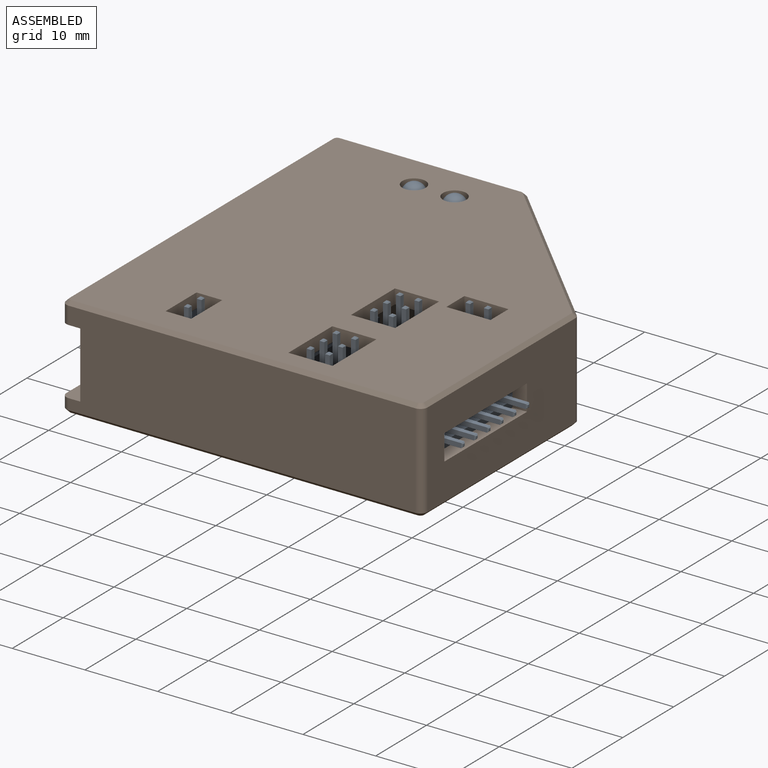
[diagram: assembled view]
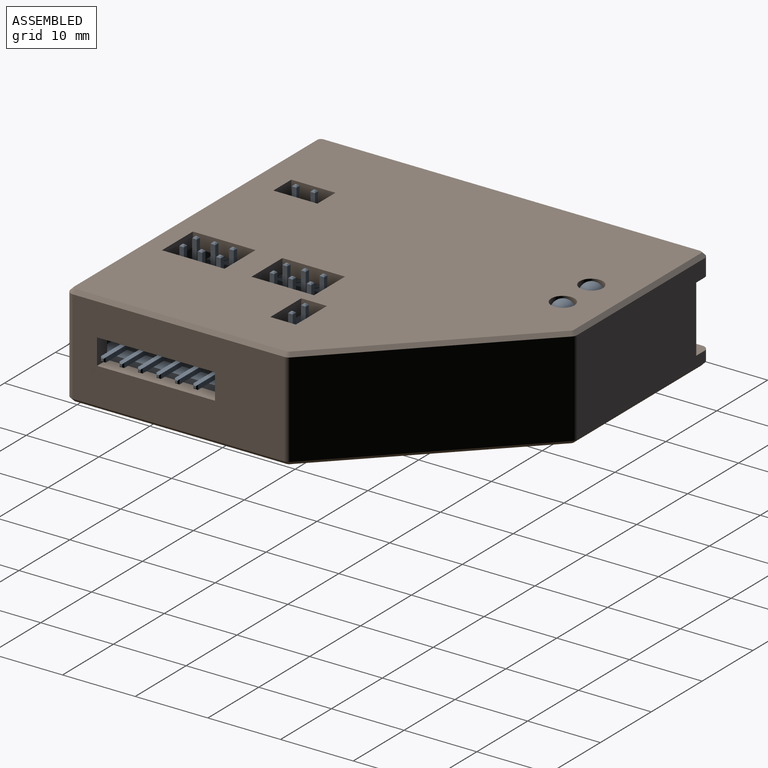
[diagram: assembled view, second angle]
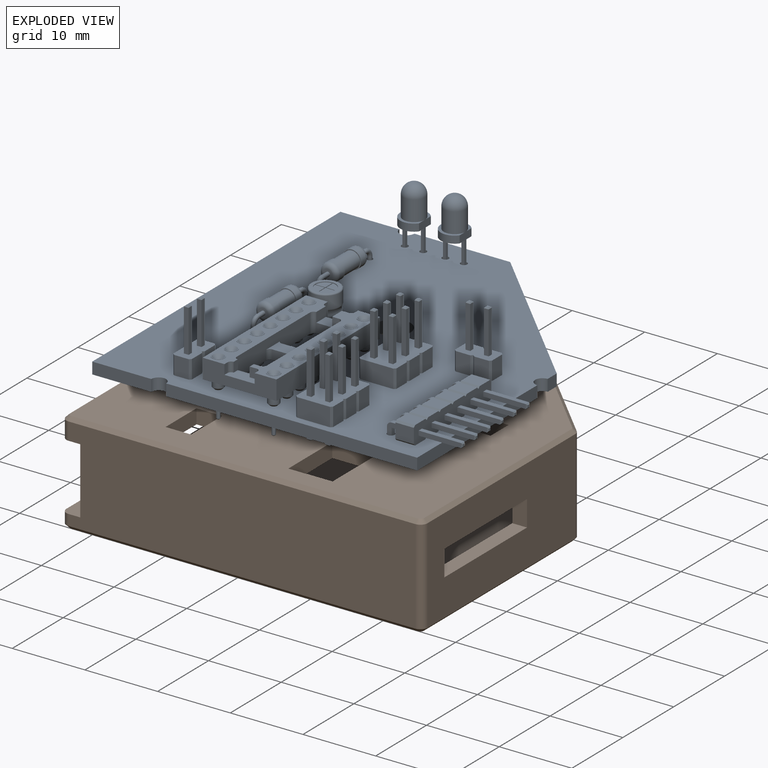
[diagram: exploded view]
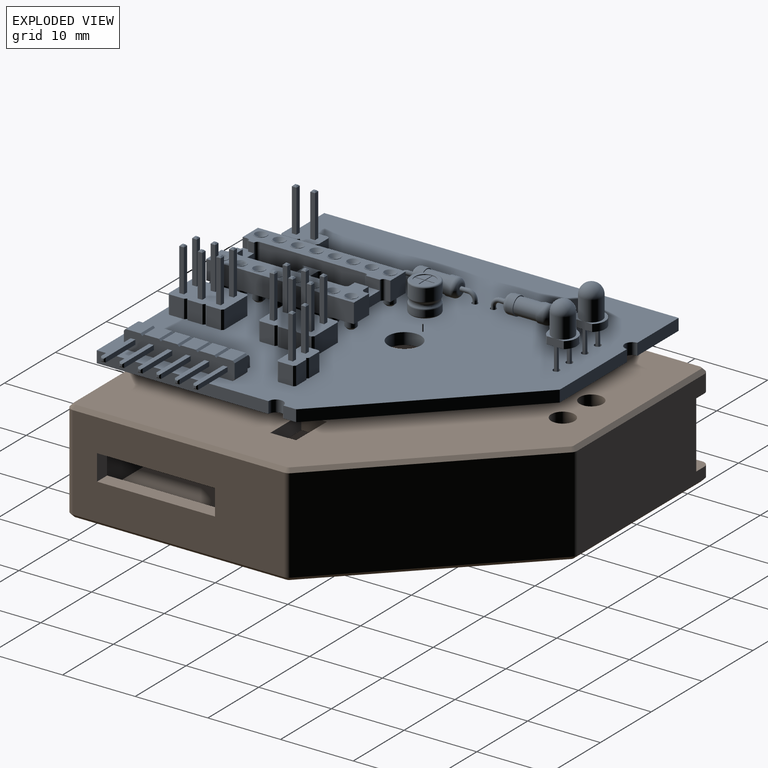
[diagram: exploded view, second angle]
FCSTD DOCUMENT  (FreeCAD 0.21R33668 +7 (Git))
Label: uprs232ttl
License: All rights reserved
LicenseURL: http://en.wikipedia.org/wiki/All_rights_reserved
objects: Sketcher::SketchObject×15, Part::Feature×14, PartDesign::Pad×12, PartDesign::Body×12, Part::Cut×10, App::Part×5, App::Link×4, PartDesign::Chamfer×2, Part::MultiFuse×2, Part::Extrusion×1, PartDesign::CoordinateSystem×1, PartDesign::Fillet×1
note: 85 computed .brp shape members not serialized (recipe doc carries the construction recipe); baked Part::Feature solids carry a one-line shape summary decoded from their .brp

FEATURE [Sketcher::SketchObject] Sketch
  FullyConstrained = true
  MapMode = 5
  Support = -> [XY_Plane005]
  sketch-geometry (11):
    g0: LineSegment StartX=-0.5 StartY=49.1 StartZ=0 EndX=-0.5 EndY=-0.5 EndZ=0
    g1: LineSegment StartX=45.204 StartY=-0.5 StartZ=0 EndX=45.204 EndY=23.638 EndZ=0
    g2: LineSegment StartX=45.204 StartY=27.678 StartZ=0 EndX=23.614 EndY=49.1 EndZ=0
    g3: LineSegment StartX=23.614 StartY=49.1 StartZ=0 EndX=10.144 EndY=49.1 EndZ=0
    g4: ArcOfCircle CenterX=9.144 CenterY=-0.5 CenterZ=0 NormalX=0 NormalY=0 NormalZ=1 AngleXU=0 Radius=1 StartAngle=0 EndAngle=3.14159
    g5: ArcOfCircle CenterX=45.204 CenterY=24.638 CenterZ=0 NormalX=0 NormalY=0 NormalZ=1 AngleXU=0 Radius=1 StartAngle=1.5708 EndAngle=4.71239
    g6: ArcOfCircle CenterX=9.144 CenterY=49.1 CenterZ=0 NormalX=0 NormalY=0 NormalZ=1 AngleXU=0 Radius=1 StartAngle=3.14159 EndAngle=6.28319
    g7: LineSegment StartX=8.144 StartY=49.1 StartZ=0 EndX=-0.5 EndY=49.1 EndZ=0
    g8: LineSegment StartX=10.144 StartY=-0.5 StartZ=0 EndX=45.204 EndY=-0.5 EndZ=0
    g9: LineSegment StartX=45.204 StartY=25.638 StartZ=0 EndX=45.204 EndY=27.678 EndZ=0
    g10: LineSegment StartX=-0.5 StartY=-0.5 StartZ=0 EndX=8.144 EndY=-0.5 EndZ=0
  constraints (36):
    c: Vertical(g0)
    c: Coincident(g8,g1)
    c: Vertical(g1)
    c: Coincident(g9,g2)
    c: Coincident(g2,g3)
    c: Coincident(g7,g0)
    c: Horizontal(g3)
    c: DistanceY(g0,g-1) = 0.5
    c: DistanceX(g0,g-1) = 0.5
    c: Distance(g0) = 49.6
    c: Radius(g4) = 1
    c: DistanceX(g-1,g4) = 9.144
    c: PointOnObject(g5,g1)
    c: Radius(g5) = 1
    c: PointOnObject(g6,g3)
    c: Equal(g4,g6)
    c: DistanceX(g-1,g6) = 9.144
    c: Coincident(g3,g6)
    c: Coincident(g7,g6)
    c: Coincident(g8,g4)
    c: Coincident(g1,g5)
    c: Coincident(g9,g5)
    c: DistanceX(g6,g2) = 14.47
    c: Coincident(g10,g0)
    c: Coincident(g10,g4)
    c: Horizontal(g10)
    c: Horizontal(g4,g1)
    c: Horizontal(g4,g4)
    c: Vertical(g2,g5)
    c: Vertical(g5,g1)
    c: DistanceX(g4,g1) = 36.06
    c: DistanceY(g1,g5) = 25.138
    c: DistanceY(g5,g2) = 3.04
    c: Perpendicular(g6,g7)
    c: Perpendicular(g0,g7)
    c: Perpendicular(g4,g10)
FEATURE [PartDesign::Pad] Pad
  Direction = (0,0,1)
  Length = 6
  Length2 = 4
  Profile = -> Sketch
  ReferenceAxis = -> Sketch [N_Axis]
  Type = 4
FEATURE [PartDesign::Body] Body  label="Case_inner"
  Group = -> [Sketch,Pad]
  Origin = -> Origin005
  Tip = -> Pad
FEATURE [Sketcher::SketchObject] Sketch001
  FullyConstrained = true
  MapMode = 5
  Support = -> [XY_Plane006]
  sketch-geometry (5):
    g0: LineSegment StartX=-2.5 StartY=51.26 StartZ=0 EndX=-2.5 EndY=-2.5 EndZ=0
    g1: LineSegment StartX=-2.5 StartY=-2.5 StartZ=0 EndX=47.2 EndY=-2.5 EndZ=0
    g2: LineSegment StartX=47.2 StartY=-2.5 StartZ=0 EndX=47.2 EndY=27.93 EndZ=0
    g3: LineSegment StartX=47.2 StartY=27.93 StartZ=0 EndX=23.87 EndY=51.26 EndZ=0
    g4: LineSegment StartX=23.87 StartY=51.26 StartZ=0 EndX=-2.5 EndY=51.26 EndZ=0
  constraints (15):
    c: Vertical(g0)
    c: Coincident(g0,g1)
    c: Horizontal(g1)
    c: Coincident(g1,g2)
    c: Vertical(g2)
    c: Coincident(g2,g3)
    c: Coincident(g3,g4)
    c: Coincident(g4,g0)
    c: DistanceX(g0,g-1) = 2.5
    c: DistanceY(g0,g-1) = 2.5
    c: DistanceX(g1,g1) = 49.7
    c: Distance(g0) = 53.76
    c: Perpendicular(g4,g0)
    c: Distance(g2) = 30.43
    c: DistanceX(g4,g4) = 26.37
FEATURE [PartDesign::Pad] Pad001
  Direction = (0,0,1)
  Length = 8
  Length2 = 6
  Profile = -> Sketch001
  ReferenceAxis = -> Sketch001 [N_Axis]
  Type = 4
FEATURE [Sketcher::SketchObject] Sketch002
  FullyConstrained = true
  MapMode = 5
  Placement = pos=(42.648,16.256,0) rot=(0.57735,0.57735,0.57735;2.0944rad)
  sketch-geometry (4):
    g0: LineSegment StartX=-14.47 StartY=3.04 StartZ=0 EndX=1.77 EndY=3.04 EndZ=0
    g1: LineSegment StartX=1.77 StartY=3.04 StartZ=0 EndX=1.77 EndY=-0.5 EndZ=0
    g2: LineSegment StartX=1.77 StartY=-0.5 StartZ=0 EndX=-14.47 EndY=-0.5 EndZ=0
    g3: LineSegment StartX=-14.47 StartY=-0.5 StartZ=0 EndX=-14.47 EndY=3.04 EndZ=0
  constraints (12):
    c: Coincident(g0,g1)
    c: Coincident(g1,g2)
    c: Coincident(g2,g3)
    c: Coincident(g3,g0)
    c: Horizontal(g0)
    c: Horizontal(g2)
    c: Vertical(g1)
    c: Vertical(g3)
    c: DistanceY(g1,g1) = 3.54
    c: DistanceX(g0,g0) = 16.24
    c: Distance(g-1,g0) = 3.04
    c: DistanceX(g-2,g0) = 1.77
FEATURE [PartDesign::Pad] Pad002
  Direction = (1,0,0)
  Length = 10
  Length2 = 10
  Placement = pos=(42.648,16.256,0) rot=(0.57735,0.57735,0.57735;2.0944rad)
  Profile = -> Sketch002
  ReferenceAxis = -> Sketch002 [N_Axis]
  Refine = true
  Type = 0
FEATURE [PartDesign::Body] Body002  label="Serial_Header"
  Group = -> [Sketch002,Pad002]
  Origin = -> Origin007
  Tip = -> Pad002
FEATURE [Sketcher::SketchObject] Sketch003
  FullyConstrained = true
  MapMode = 5
  sketch-geometry (18):
    g0: LineSegment StartX=8.9 StartY=7.78 StartZ=0 EndX=12.44 EndY=7.78 EndZ=0
    g1: LineSegment StartX=12.44 StartY=7.78 StartZ=0 EndX=12.44 EndY=1.7 EndZ=0
    g2: LineSegment StartX=12.44 StartY=1.7 StartZ=0 EndX=8.9 EndY=1.7 EndZ=0
    g3: LineSegment StartX=8.9 StartY=1.7 StartZ=0 EndX=8.9 EndY=7.78 EndZ=0
    g4: LineSegment StartX=26.6 StartY=21.49 StartZ=0 EndX=32.68 EndY=21.49 EndZ=0
    g5: LineSegment StartX=32.68 StartY=21.49 StartZ=0 EndX=32.68 EndY=12.87 EndZ=0
    g6: LineSegment StartX=32.68 StartY=12.87 StartZ=0 EndX=26.6 EndY=12.87 EndZ=0
    g7: LineSegment StartX=26.6 StartY=12.87 StartZ=0 EndX=26.6 EndY=21.49 EndZ=0
    g8: LineSegment StartX=26.6 StartY=9.17 StartZ=0 EndX=32.68 EndY=9.17 EndZ=0
    g9: LineSegment StartX=32.68 StartY=9.17 StartZ=0 EndX=32.68 EndY=0.55 EndZ=0
    g10: LineSegment StartX=32.68 StartY=0.55 StartZ=0 EndX=26.6 EndY=0.55 EndZ=0
    g11: LineSegment StartX=26.6 StartY=0.55 StartZ=0 EndX=26.6 EndY=9.17 EndZ=0
    g12: LineSegment StartX=34.18 StartY=24.31 StartZ=0 EndX=40.26 EndY=24.31 EndZ=0
    g13: LineSegment StartX=40.26 StartY=24.31 StartZ=0 EndX=40.26 EndY=20.77 EndZ=0
    g14: LineSegment StartX=40.26 StartY=20.77 StartZ=0 EndX=34.18 EndY=20.77 EndZ=0
    g15: LineSegment StartX=34.18 StartY=20.77 StartZ=0 EndX=34.18 EndY=24.31 EndZ=0
    g16: Circle CenterX=12.44 CenterY=45.46 CenterZ=0 NormalX=0 NormalY=0 NormalZ=1 AngleXU=0 Radius=1.6
    g17: Circle CenterX=18.03 CenterY=45.46 CenterZ=0 NormalX=0 NormalY=0 NormalZ=1 AngleXU=0 Radius=1.6
  constraints (54):
    c: Coincident(g0,g1)
    c: Coincident(g1,g2)
    c: Coincident(g2,g3)
    c: Coincident(g3,g0)
    c: Horizontal(g0)
    c: Horizontal(g2)
    c: Vertical(g1)
    c: Vertical(g3)
    c: Coincident(g4,g5)
    c: Coincident(g5,g6)
    c: Coincident(g6,g7)
    c: Coincident(g7,g4)
    c: Horizontal(g4)
    c: Horizontal(g6)
    c: Vertical(g5)
    c: Vertical(g7)
    c: Coincident(g8,g9)
    c: Coincident(g9,g10)
    c: Coincident(g10,g11)
    c: Coincident(g11,g8)
    c: Horizontal(g8)
    c: Horizontal(g10)
    c: Vertical(g9)
    c: Vertical(g11)
    c: Coincident(g12,g13)
    c: Coincident(g13,g14)
    c: Coincident(g14,g15)
    c: Coincident(g15,g12)
    c: Horizontal(g12)
    c: Horizontal(g14)
    c: Vertical(g13)
    c: Vertical(g15)
    c: Equal(g2,g13)
    c: Equal(g14,g1)
    c: Equal(g3,g4)
    c: Equal(g6,g8)
    c: DistanceX(g0,g0) = 3.54
    c: DistanceY(g1,g1) = 6.08
    c: DistanceY(g5,g5) = 8.62
    c: Vertical(g5,g8)
    c: DistanceX(g-1,g2) = 8.9
    c: DistanceX(g-1,g10) = 26.6
    c: DistanceY(g-1,g10) = 0.55
    c: DistanceY(g8,g6) = 3.7
    c: DistanceY(g-1,g2) = 1.7
    c: DistanceY(g-1,g14) = 20.77
    c: DistanceX(g-1,g14) = 34.18
    c: Equal(g5,g9)
    c: Equal(g16,g17)
    c: Horizontal(g16,g17)
    c: Radius(g16) = 1.6
    c: DistanceX(g-1,g16) = 12.44
    c: DistanceY(g-1,g16) = 45.46
    c: DistanceX(g16,g17) = 5.59
FEATURE [Part::Extrusion] Extrude  label="Top_Holes"
  Base = -> Sketch003
  Dir = (0,0,1)
  DirMode = 2
  FaceMakerClass = Part::FaceMakerBullseye
  LengthFwd = 12
  LengthRev = 0
  Solid = true
  Symmetric = false
FEATURE [App::Link] D1_LED_D3_0mm_84ef9f765c9e_ln_001  label="D2_LED_D3.0mm_989bf902ef100"
  LinkPlacement = pos=(19.304,45.466,0) rot=(0,0,1;3.14159rad)
  LinkedObject = -> Shape017
  Placement = pos=(19.304,45.466,0) rot=(0,0,1;3.14159rad)
FEATURE [App::Link] J2_PinHeader_1x02_P254mm_Vertical_8e66052f03aa_ln_001  label="J1_PinHeader_1x02_P254mm_Vertical_1df72c912ab001"
  LinkPlacement = pos=(10.668,3.556,0) rot=(0,0,1;3.14159rad)
  LinkedObject = -> Shape013
  Placement = pos=(10.668,3.556,0) rot=(0,0,1;3.14159rad)
FEATURE [App::Link] J5_PinHeader_2x03_P254mm_Vertical_f21c70f652c8_ln_001  label="J4_PinHeader_2x03_P254mm_Vertical_54a7b53a578c001"
  LinkPlacement = pos=(28.448,7.366,0) rot=(0,0,1;0rad)
  LinkedObject = -> Shape011
  Placement = pos=(28.448,7.366,0) rot=(0,0,1;0rad)
FEATURE [PartDesign::CoordinateSystem] Local_CS_3f6d001
  AttacherType = Attacher::AttachEngine3D
  MapMode = 2
  Support = -> [X_Axis010]
FEATURE [Sketcher::SketchObject] PCB_Sketch_3f6d002
  FullyConstrained = false
  sketch-geometry (14):
    g0: LineSegment StartX=8.128 StartY=48.768 StartZ=0 EndX=0 EndY=48.768 EndZ=0
    g1: LineSegment StartX=0 StartY=48.768 StartZ=0 EndX=0 EndY=0 EndZ=0
    g2: LineSegment StartX=21.844 StartY=0 StartZ=0 EndX=40.132 EndY=0 EndZ=0
    g3: LineSegment StartX=40.132 StartY=0 StartZ=0 EndX=44.704 EndY=0 EndZ=0
    g4: LineSegment StartX=44.704 StartY=27.432 StartZ=0 EndX=23.368 EndY=48.768 EndZ=0
    g5: LineSegment StartX=10.16 StartY=1e-16 StartZ=0 EndX=21.844 EndY=0 EndZ=0
    g6: LineSegment StartX=10.16 StartY=48.768 StartZ=0 EndX=23.368 EndY=48.768 EndZ=0
    g7: LineSegment StartX=8.128 StartY=0 StartZ=0 EndX=0 EndY=0 EndZ=0
    g8: LineSegment StartX=44.704 StartY=27.432 StartZ=0 EndX=44.704 EndY=25.654 EndZ=0
    g9: LineSegment StartX=44.704 StartY=0 StartZ=0 EndX=44.704 EndY=23.622 EndZ=0
    g10: ArcOfCircle CenterX=44.704 CenterY=24.638 CenterZ=0 NormalX=0 NormalY=0 NormalZ=-1 AngleXU=-1.5708 Radius=1.016 StartAngle=0 EndAngle=3.14159
    g11: ArcOfCircle CenterX=9.144 CenterY=0 CenterZ=0 NormalX=0 NormalY=0 NormalZ=-1 AngleXU=0 Radius=1.016 StartAngle=0 EndAngle=3.14159
    g12: ArcOfCircle CenterX=9.144 CenterY=48.768 CenterZ=0 NormalX=0 NormalY=0 NormalZ=-1 AngleXU=-3.14159 Radius=1.016 StartAngle=0 EndAngle=3.14159
    g13: Circle CenterX=22.6771 CenterY=26.924 CenterZ=0 NormalX=0 NormalY=0 NormalZ=1 AngleXU=0 Radius=2.25009
  constraints (13):
    c: Coincident(g1,g7)
    c: Coincident(g0,g1)
    c: Coincident(g7,g11)
    c: Coincident(g0,g12)
    c: Coincident(g5,g11)
    c: Coincident(g6,g12)
    c: Coincident(g2,g5)
    c: Coincident(g4,g6)
    c: Coincident(g2,g3)
    c: Coincident(g3,g9)
    c: Coincident(g9,g10)
    c: Coincident(g8,g10)
    c: Coincident(g4,g8)
FEATURE [Part::Feature] Pcb_3f6d001
  Placement = pos=(-130.048,125.73,0) rot=(0,0,1;0rad)
  shape: bbox 44.7 x 48.77 x 1.6 mm, 64 faces (baked)
FEATURE [App::Link] R2_R_Axial_DIN0207_L63mm_D25mm_P1016mm_Horizontal_69dda77a9335_ln_001  label="R1_R_Axial_DIN0207_L63mm_D25mm_P1016mm_Horizontal_a4e89cd03851"
  LinkPlacement = pos=(9.906,17.526,0) rot=(0,0,1;1.5708rad)
  LinkedObject = -> Shape016
  Placement = pos=(9.906,17.526,0) rot=(0,0,1;1.5708rad)
FEATURE [Part::Feature] Shape011  label="J5_PinHeader_2x03_P254mm_Vertical_f21c70f652c009"
  Placement = pos=(28.448,19.812,0) rot=(0,0,1;0rad)
  shape: bbox 5.08 x 7.62 x 11.54 mm, 130 faces (baked)
FEATURE [Part::Feature] Shape012  label="U1_DIP_16_W762mm_Socket_0ffd12d0021d001"
  Placement = pos=(15.748,20.066,0) rot=(0,0,1;0rad)
  shape: bbox 10.16 x 20.32 x 7.787 mm, 231 faces (baked)
FEATURE [Part::Feature] Shape013  label="J2_PinHeader_1x02_P254mm_Vertical_8e66052f03aa001"
  Placement = pos=(38.613,22.606,0) rot=(0,0,-1;1.5708rad)
  shape: bbox 5.08 x 2.54 x 11.54 mm, 52 faces (baked)
FEATURE [Part::Feature] Shape014  label="C1_CP_Radial_D40mm_P150mm_52a40ae557f009"
  Placement = pos=(14.2634,24.384,0) rot=(0,0,1;0rad)
  shape: bbox 4.924 x 5.212 x 6 mm, 54 faces (baked)
FEATURE [Part::Feature] Shape015  label="J3_PinHeader_1x06_P254mm_Horizontal_d8e691e5f700"
  Placement = pos=(38.608,16.256,0) rot=(0,0,1;0rad)
  shape: bbox 10.36 x 15.24 x 5.54 mm, 166 faces (baked)
FEATURE [Part::Feature] Shape016  label="R2_R_Axial_DIN0207_L63mm_D25mm_P1016mm_Horizontal_69dda77a9336"
  Placement = pos=(9.906,30.226,0) rot=(0,0,1;1.5708rad)
  shape: bbox 2.706 x 10.96 x 5.603 mm, 17 faces (baked)
FEATURE [Part::Feature] Shape017  label="D1_LED_D3.0mm_84ef9f765c9e001"
  Placement = pos=(13.716,45.466,0) rot=(0,0,1;3.14159rad)
  shape: bbox 3.4 x 3.8 x 10.8 mm, 16 faces (baked)
FEATURE [Part::Feature] Shape018  label="topTracks_3f6d001"
  Placement = pos=(-130.048,125.73,0.01) rot=(0,0,1;0rad)
  shape: bbox 29.71 x 44.25 x 2e-07 mm, 9 faces, 0 solids (baked)
FEATURE [Part::Feature] Shape019  label="botTracks_3f6d001"
  Placement = pos=(-130.048,125.73,-1.61) rot=(0,0,1;0rad)
  shape: bbox 37.08 x 45.72 x 2e-07 mm, 21 faces, 0 solids (baked)
FEATURE [App::Part] Top_3f6d001  label="Top_3f6d002"
  Group = -> [Shape011,Shape012,Shape013,Shape014,Shape015,Shape016,Shape017,J2_PinHeader_1x02_P254mm_Vertical_8e66052f03aa_ln_001,D1_LED_D3_0mm_84ef9f765c9e_ln_001,R2_R_Axial_DIN0207_L63mm_D25mm_P1016mm_Horizontal_69dda77a9335_ln_001,J5_PinHeader_2x03_P254mm_Vertical_f21c70f652c8_ln_001]
  Origin = -> Origin012
FEATURE [App::Part] Step_Models_3f6d001  label="Step_Models_3f6d002"
  Group = -> [Top_3f6d001]
  Origin = -> Origin011
FEATURE [Part::Feature] pads_area004  label="botPads_3f6d001"
  Placement = pos=(-130.048,125.73,-1.62) rot=(0,0,1;0rad)
  shape: bbox 43.53 x 47.17 x 2e-07 mm, 79 faces, 0 solids (baked)
FEATURE [Part::Feature] topPads_3f6d_001  label="topPads_3f6d_cut001"
  Placement = pos=(0,0,0.02) rot=(0,0,1;0rad)
  shape: bbox 43.53 x 47.17 x 2e-07 mm, 79 faces, 0 solids (baked)
FEATURE [Part::Feature] zones_area004  label="topZones_3f6d001"
  Placement = pos=(-130.048,125.73,0.01) rot=(0,0,1;0rad)
  shape: bbox 44.75 x 48.82 x 2e-07 mm, 3 faces, 0 solids (baked)
FEATURE [Part::Feature] zones_area005  label="botZones_3f6d001"
  Placement = pos=(-130.048,125.73,-1.61) rot=(0,0,1;0rad)
  shape: bbox 44.75 x 48.82 x 2e-07 mm, 11 faces, 0 solids (baked)
FEATURE [App::Part] Board_Geoms_3f6d001  label="Board_Geoms_3f6d002"
  Group = -> [Pcb_3f6d001,PCB_Sketch_3f6d002,topPads_3f6d_001,Shape018,zones_area004,pads_area004,Shape019,zones_area005]
  Origin = -> Origin009
FEATURE [App::Part] Board_3f6d001  label="PCB"
  Group = -> [Local_CS_3f6d001,Board_Geoms_3f6d001,Step_Models_3f6d001]
  Origin = -> Origin010
FEATURE [PartDesign::Fillet] Fillet
  Base = -> Pad001 [Edge11,Edge8,Edge1,Edge2,Edge5]
  BaseFeature = -> Pad001
  Radius = 1
  SupportTransform = false
  UseAllEdges = false
FEATURE [PartDesign::Chamfer] Chamfer
  Angle = 45
  Base = -> Fillet [Face5]
  BaseFeature = -> Fillet
  ChamferType = 0
  FlipDirection = false
  Size = 0.5
  Size2 = 1
  SupportTransform = false
  UseAllEdges = false
FEATURE [PartDesign::Chamfer] Chamfer001
  Angle = 45
  Base = -> Chamfer [Face4]
  BaseFeature = -> Chamfer
  ChamferType = 0
  FlipDirection = false
  Size = 0.5
  Size2 = 1
  SupportTransform = false
  UseAllEdges = false
FEATURE [PartDesign::Body] Body001  label="Case_Outer"
  Group = -> [Sketch001,Pad001,Fillet,Chamfer,Chamfer001]
  Origin = -> Origin006
  Tip = -> Chamfer001
FEATURE [Sketcher::SketchObject] Sketch004
  FullyConstrained = true
  MapMode = 5
  Placement = pos=(0,0,0) rot=(0.57735,0.57735,0.57735;2.0944rad)
  Support = -> [YZ_Plane004]
  sketch-geometry (4):
    g0: LineSegment StartX=70 StartY=5.1 StartZ=0 EndX=-20 EndY=5.1 EndZ=0
    g1: LineSegment StartX=-20 StartY=5.1 StartZ=0 EndX=-20 EndY=-4 EndZ=0
    g2: LineSegment StartX=-20 StartY=-4 StartZ=0 EndX=70 EndY=-4 EndZ=0
    g3: LineSegment StartX=70 StartY=-4 StartZ=0 EndX=70 EndY=5.1 EndZ=0
  constraints (12):
    c: Coincident(g0,g1)
    c: Coincident(g1,g2)
    c: Coincident(g2,g3)
    c: Coincident(g3,g0)
    c: Horizontal(g0)
    c: Horizontal(g2)
    c: Vertical(g1)
    c: Vertical(g3)
    c: DistanceY(g1,g1) = 9.1
    c: DistanceX(g0,g0) = 90
    c: DistanceX(g1,g-1) = 20
    c: DistanceY(g1,g-1) = 4
FEATURE [PartDesign::Pad] Pad003
  Direction = (1,-2e-16,3e-16)
  Length = 10
  Length2 = 0.1
  Placement = pos=(0,0,0) rot=(1,1,1;2.0944rad)
  Profile = -> Sketch004
  ReferenceAxis = -> Sketch004 [N_Axis]
  Reversed = true
  Type = 4
FEATURE [Sketcher::SketchObject] Sketch005
  FullyConstrained = true
  MapMode = 5
  Support = -> [XY_Plane]
  sketch-geometry (7):
    g0: ArcOfCircle CenterX=9.13 CenterY=48.92 CenterZ=0 NormalX=0 NormalY=0 NormalZ=1 AngleXU=0 Radius=2 StartAngle=2.90653 EndAngle=6.51825
    g1: ArcOfCircle CenterX=44.9 CenterY=24.67 CenterZ=0 NormalX=0 NormalY=0 NormalZ=1 AngleXU=0 Radius=2 StartAngle=1.33573 EndAngle=4.94745
    g2: ArcOfCircle CenterX=9.13 CenterY=0 CenterZ=0 NormalX=0 NormalY=0 NormalZ=1 AngleXU=0 Radius=2 StartAngle=6.04812 EndAngle=9.65984
    g3: LineSegment StartX=7.185 StartY=-0.465806 StartZ=0 EndX=11.075 EndY=-0.465806 EndZ=0
    g4: LineSegment StartX=45.3658 StartY=26.615 StartZ=0 EndX=45.3658 EndY=22.725 EndZ=0
    g5: LineSegment StartX=7.185 StartY=49.3858 StartZ=0 EndX=11.075 EndY=49.3858 EndZ=0
    g6: Circle CenterX=22.68 CenterY=26.92 CenterZ=0 NormalX=0 NormalY=0 NormalZ=1 AngleXU=0 Radius=3.5
  constraints (24):
    c: Equal(g0,g1)
    c: Equal(g1,g2)
    c: Radius(g2) = 2
    c: Horizontal(g3)
    c: Coincident(g2,g3)
    c: Coincident(g2,g3)
    c: Vertical(g4)
    c: Coincident(g1,g4)
    c: Coincident(g1,g4)
    c: Horizontal(g5)
    c: Coincident(g0,g5)
    c: Coincident(g0,g5)
    c: Equal(g3,g4)
    c: Equal(g4,g5)
    c: Distance(g3) = 3.89
    c: DistanceX(g-1,g2) = 9.13
    c: DistanceX(g-1,g0) = 9.13
    c: DistanceY(g-1,g0) = 48.92
    c: DistanceY(g-1,g1) = 24.67
    c: DistanceX(g-1,g1) = 44.9
    c: DistanceX(g-1,g6) = 22.68
    c: DistanceY(g-1,g6) = 26.92
    c: Radius(g6) = 3.5
    c: DistanceY(g2,g-1) = 0
FEATURE [PartDesign::Body] Body003  label="CardConnectorCutOut"
  Group = -> [Sketch004,Pad003,Sketch005]
  Origin = -> Origin
  Tip = -> Pad003
FEATURE [Sketcher::SketchObject] Sketch009
  FullyConstrained = true
  MapMode = 5
  Support = -> [XY_Plane014]
  sketch-geometry (2):
    g0: ArcOfCircle CenterX=9.15 CenterY=0 CenterZ=0 NormalX=0 NormalY=0 NormalZ=1 AngleXU=0 Radius=2 StartAngle=6.02754 EndAngle=9.68042
    g1: LineSegment StartX=7.215 StartY=-0.505742 StartZ=0 EndX=11.085 EndY=-0.505742 EndZ=0
  constraints (7):
    c: Radius(g0) = 2
    c: DistanceY(g0,g-1) = 0
    c: DistanceX(g-1,g0) = 9.15
    c: Horizontal(g1)
    c: Coincident(g0,g1)
    c: Coincident(g0,g1)
    c: DistanceX(g1,g1) = 3.87
FEATURE [PartDesign::Pad] Pad005
  Direction = (0,0,1)
  Length = 4
  Length2 = -1.6
  Profile = -> Sketch009
  ReferenceAxis = -> Sketch009 [N_Axis]
  Reversed = true
  Type = 4
FEATURE [PartDesign::Body] Body004  label="BoardStand1"
  Group = -> [Sketch009,Pad005]
  Origin = -> Origin013
  Tip = -> Pad005
FEATURE [Sketcher::SketchObject] Sketch010
  FullyConstrained = true
  MapMode = 5
  Support = -> [XY_Plane016]
  sketch-geometry (2):
    g0: ArcOfCircle CenterX=45.22 CenterY=24.64 CenterZ=0 NormalX=0 NormalY=0 NormalZ=1 AngleXU=0 Radius=2 StartAngle=1.50007 EndAngle=4.78311
    g1: LineSegment StartX=45.3613 StartY=26.635 StartZ=0 EndX=45.3613 EndY=22.645 EndZ=0
  constraints (7):
    c: Radius(g0) = 2
    c: Vertical(g1)
    c: Coincident(g0,g1)
    c: Coincident(g0,g1)
    c: DistanceY(g1,g1) = 3.99
    c: DistanceY(g-1,g0) = 24.64
    c: DistanceX(g-1,g0) = 45.22
FEATURE [PartDesign::Pad] Pad006
  Direction = (0,0,1)
  Length = 4
  Length2 = -1.6
  Profile = -> Sketch010
  ReferenceAxis = -> Sketch010 [N_Axis]
  Reversed = true
  Type = 4
FEATURE [PartDesign::Body] Body005  label="BoardStand2"
  Group = -> [Sketch010,Pad006]
  Origin = -> Origin014
  Tip = -> Pad006
FEATURE [Sketcher::SketchObject] Sketch011
  FullyConstrained = true
  MapMode = 5
  Support = -> [XY_Plane017]
  sketch-geometry (2):
    g0: ArcOfCircle CenterX=9.14 CenterY=49.09 CenterZ=0 NormalX=0 NormalY=0 NormalZ=1 AngleXU=0 Radius=2 StartAngle=3.00005 EndAngle=6.42472
    g1: LineSegment StartX=7.16 StartY=49.3721 StartZ=0 EndX=11.12 EndY=49.3721 EndZ=0
  constraints (7):
    c: Radius(g0) = 2
    c: Horizontal(g1)
    c: DistanceX(g1,g1) = 3.96
    c: Coincident(g0,g1)
    c: Coincident(g0,g1)
    c: DistanceX(g-1,g0) = 9.14
    c: DistanceY(g-1,g0) = 49.09
FEATURE [PartDesign::Pad] Pad007
  Direction = (0,0,1)
  Length = 4
  Length2 = -1.6
  Profile = -> Sketch011
  ReferenceAxis = -> Sketch011 [N_Axis]
  Reversed = true
  Type = 4
FEATURE [PartDesign::Body] Body006  label="BoardStand3"
  Group = -> [Sketch011,Pad007]
  Origin = -> Origin015
  Tip = -> Pad007
FEATURE [Sketcher::SketchObject] Sketch012
  FullyConstrained = true
  MapMode = 5
  Support = -> [XY_Plane018]
  sketch-geometry (1):
    g0: Circle CenterX=22.69 CenterY=26.91 CenterZ=0 NormalX=0 NormalY=0 NormalZ=1 AngleXU=0 Radius=3.5
  constraints (3):
    c: Radius(g0) = 3.5
    c: DistanceY(g-1,g0) = 26.91
    c: DistanceX(g-1,g0) = 22.69
FEATURE [PartDesign::Pad] Pad008
  Direction = (0,0,1)
  Length = 4
  Length2 = -1.6
  Profile = -> Sketch012
  ReferenceAxis = -> Sketch012 [N_Axis]
  Reversed = true
  Type = 4
FEATURE [PartDesign::Body] Body007  label="BoardStandCenterBottom"
  Group = -> [Sketch012,Pad008]
  Origin = -> Origin016
  Tip = -> Pad008
FEATURE [Sketcher::SketchObject] Sketch013
  FullyConstrained = true
  MapMode = 5
  Support = -> [XY_Plane019]
  sketch-geometry (1):
    g0: Circle CenterX=22.68 CenterY=26.92 CenterZ=0 NormalX=0 NormalY=0 NormalZ=1 AngleXU=0 Radius=2.2
  constraints (3):
    c: Radius(g0) = 2.2
    c: DistanceY(g-1,g0) = 26.92
    c: DistanceX(g-1,g0) = 22.68
FEATURE [PartDesign::Pad] Pad009
  Direction = (0,0,1)
  Length = 5
  Length2 = 3
  Profile = -> Sketch013
  ReferenceAxis = -> Sketch013 [N_Axis]
  Type = 4
FEATURE [PartDesign::Body] Body008  label="BoardStandCenterPCB"
  Group = -> [Sketch013,Pad009]
  Origin = -> Origin017
  Tip = -> Pad009
FEATURE [Sketcher::SketchObject] Sketch014
  FullyConstrained = true
  MapMode = 5
  Support = -> [XY_Plane020]
  sketch-geometry (1):
    g0: Circle CenterX=22.67 CenterY=26.92 CenterZ=0 NormalX=0 NormalY=0 NormalZ=1 AngleXU=0 Radius=3
  constraints (3):
    c: Radius(g0) = 3
    c: DistanceX(g-1,g0) = 22.67
    c: DistanceY(g-1,g0) = 26.92
FEATURE [PartDesign::Pad] Pad010
  Direction = (0,0,1)
  Length = 6
  Length2 = 0
  Profile = -> Sketch014
  ReferenceAxis = -> Sketch014 [N_Axis]
  Type = 4
FEATURE [PartDesign::Body] Body009  label="BoardCenterTop"
  Group = -> [Sketch014,Pad010]
  Origin = -> Origin018
  Tip = -> Pad010
FEATURE [Part::Cut] Cut
  Base = -> Body
  Tool = -> Body004
FEATURE [Part::Cut] Cut001
  Base = -> Cut
  Tool = -> Body005
FEATURE [Part::Cut] Cut002
  Base = -> Cut001
  Tool = -> Body006
FEATURE [Part::Cut] Cut003
  Base = -> Cut002
  Tool = -> Body007
FEATURE [Part::Cut] Cut004
  Base = -> Cut003
  Tool = -> Body008
FEATURE [Part::Cut] Cut005
  Base = -> Cut004
  Tool = -> Body009
FEATURE [Sketcher::SketchObject] Sketch015
  FullyConstrained = true
  MapMode = 5
  Support = -> [XY_Plane021]
  sketch-geometry (1):
    g0: Circle CenterX=22.67 CenterY=26.9 CenterZ=0 NormalX=0 NormalY=0 NormalZ=1 AngleXU=0 Radius=0.8
  constraints (3):
    c: Radius(g0) = 0.8
    c: DistanceX(g-1,g0) = 22.67
    c: DistanceY(g-1,g0) = 26.9
FEATURE [Sketcher::SketchObject] Sketch016
  FullyConstrained = true
  MapMode = 5
  Support = -> [XY_Plane022]
  sketch-geometry (1):
    g0: Circle CenterX=22.71 CenterY=26.91 CenterZ=0 NormalX=0 NormalY=0 NormalZ=1 AngleXU=0 Radius=2
  constraints (3):
    c: Radius(g0) = 2
    c: DistanceX(g-1,g0) = 22.71
    c: DistanceY(g-1,g0) = 26.91
FEATURE [PartDesign::Pad] Pad011
  Direction = (0,0,1)
  Length = 6
  Length2 = 7
  Profile = -> Sketch015
  ReferenceAxis = -> Sketch015 [N_Axis]
  Type = 4
FEATURE [PartDesign::Body] Body010  label="ScrewHole"
  Group = -> [Sketch015,Pad011]
  Origin = -> Origin019
  Tip = -> Pad011
FEATURE [PartDesign::Pad] Pad012
  Direction = (0,0,1)
  Length = 7
  Length2 = -3.5
  Profile = -> Sketch016
  ReferenceAxis = -> Sketch016 [N_Axis]
  Reversed = true
  Type = 4
FEATURE [PartDesign::Body] Body011  label="ScrewFlange"
  Group = -> [Sketch016,Pad012]
  Origin = -> Origin020
  Tip = -> Pad012
FEATURE [Part::MultiFuse] Fusion
  Shapes = -> [Cut005,Body010]
FEATURE [Part::MultiFuse] Fusion001
  Shapes = -> [Fusion,Body011]
FEATURE [Part::Cut] Cut006
  Base = -> Body001
  Tool = -> Fusion001
FEATURE [Part::Cut] Cut007
  Base = -> Cut006
  Tool = -> Body003
FEATURE [Part::Cut] Cut008
  Base = -> Cut007
  Tool = -> Extrude
FEATURE [Part::Cut] Cut009
  Base = -> Cut008
  Tool = -> Body002
FEATURE [App::Part] Part  label="Case"
  Group = -> [Body002,Extrude,Cut,Body,Sketch003,Body003,Body001,Body011,Body005,Body004,Cut006,Cut008,Fusion,Cut007,Fusion001,Body008,Body006,Body009,Body010,Body007,Cut002,Cut003,Cut004,Cut005,Cut001,Cut009]
  Origin = -> Origin004
